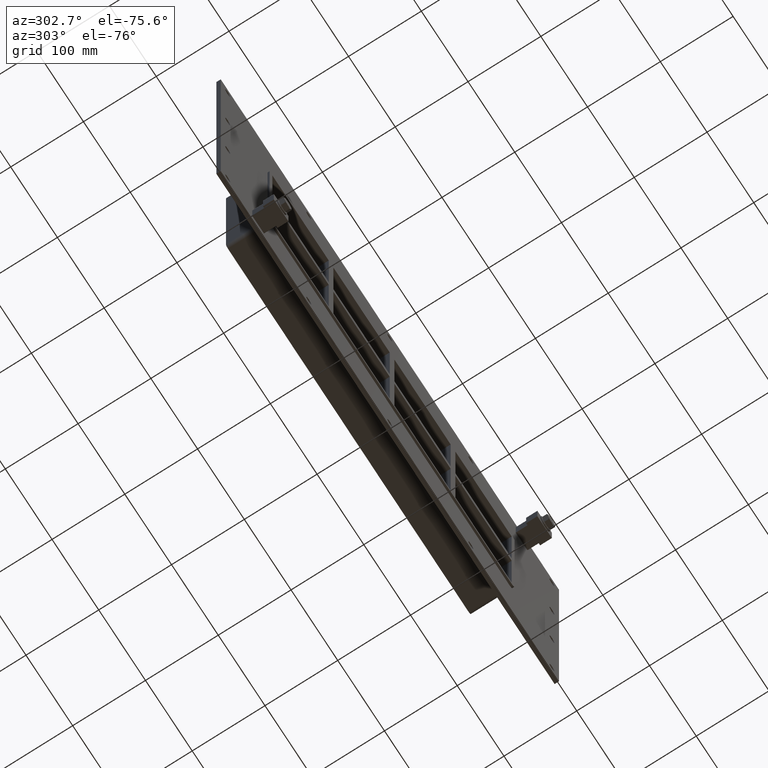
[diagram: clean part render]
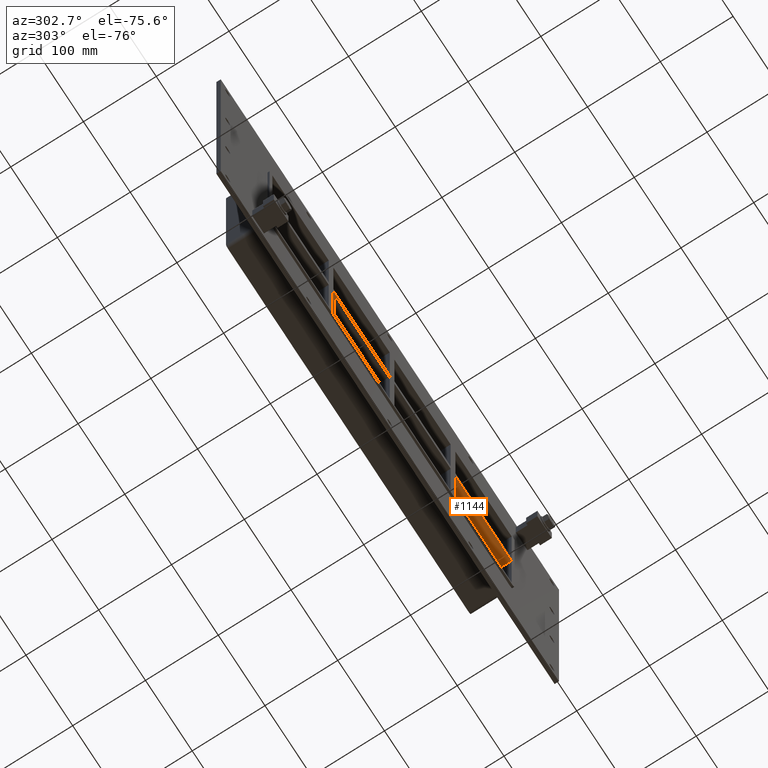
[diagram: same view with one face highlighted and labeled with its STEP entity id]
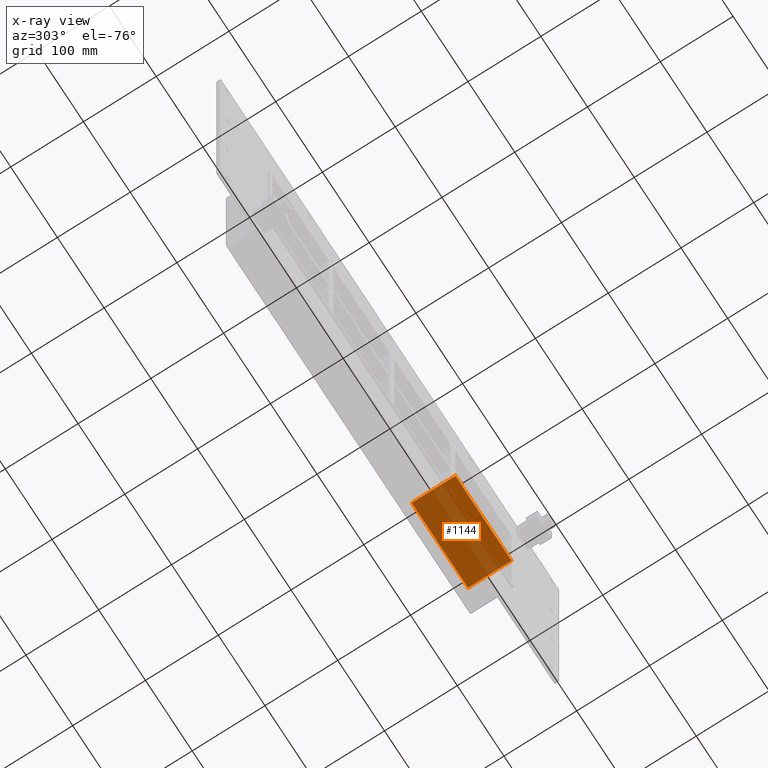
[diagram: x-ray of the same camera — body ghosted, the highlighted face saturated]
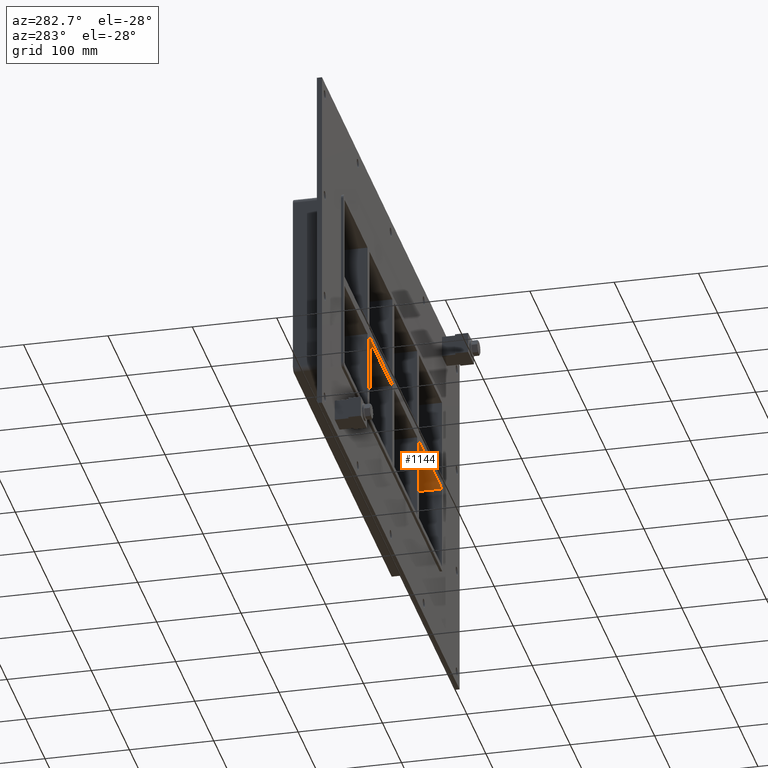
[diagram: same view with one face highlighted and labeled with its STEP entity id]
A machine part, auxiliary view. The second image highlights one B-rep face of the part: STEP entity #1144.
The next image is the same camera in x-ray: the body ghosted, the highlighted face saturated — about 77% of this face is hidden behind the body in this view.
A second angle (auxiliary view) of the same face is appended — the face is thin or edge-on in the first view.
In plain terms, the highlighted planar face has unit normal (0, 0, -1).
Its self-contained STEP definition (entity closure, byte-faithful):
#585=CARTESIAN_POINT('',(135.50000000000728,-3.0,-6.000000000010779));
#586=VERTEX_POINT('',#585);
#587=CARTESIAN_POINT('',(135.50000000000728,57.0,-6.000000000010779));
#588=VERTEX_POINT('',#587);
#589=CARTESIAN_POINT('',(135.50000000000728,-3.0,-6.000000000010788));
#590=DIRECTION('',(0.0,1.0,0.0));
#591=VECTOR('',#590,60.0);
#592=LINE('',#589,#591);
#593=EDGE_CURVE('',#586,#588,#592,.T.);
#1035=CARTESIAN_POINT('',(256.00000000000364,-3.0,-6.000000000010886));
#1036=VERTEX_POINT('',#1035);
#1037=CARTESIAN_POINT('',(256.00000000000364,-3.0,-6.000000000010886));
#1038=DIRECTION('',(-1.0,0.0,0.0));
#1039=VECTOR('',#1038,120.49999999999636);
#1040=LINE('',#1037,#1039);
#1041=EDGE_CURVE('',#1036,#586,#1040,.T.);
#1121=CARTESIAN_POINT('',(256.00000000000364,-3.0,-6.000000000010886));
#1122=DIRECTION('',(0.0,0.0,-1.0));
#1123=DIRECTION('',(-1.0,0.0,0.0));
#1124=AXIS2_PLACEMENT_3D('',#1121,#1122,#1123);
#1125=PLANE('',#1124);
#1126=ORIENTED_EDGE('',*,*,#593,.T.);
#1127=CARTESIAN_POINT('',(256.00000000000364,57.0,-6.000000000010886));
#1128=VERTEX_POINT('',#1127);
#1129=CARTESIAN_POINT('',(256.00000000000364,57.0,-6.000000000010886));
#1130=DIRECTION('',(-1.0,0.0,0.0));
#1131=VECTOR('',#1130,120.49999999999636);
#1132=LINE('',#1129,#1131);
#1133=EDGE_CURVE('',#1128,#588,#1132,.T.);
#1134=ORIENTED_EDGE('',*,*,#1133,.F.);
#1135=CARTESIAN_POINT('',(256.00000000000006,-3.0,-6.000000000010886));
#1136=DIRECTION('',(0.0,1.0,0.0));
#1137=VECTOR('',#1136,60.000000000000007);
#1138=LINE('',#1135,#1137);
#1139=EDGE_CURVE('',#1036,#1128,#1138,.T.);
#1140=ORIENTED_EDGE('',*,*,#1139,.F.);
#1141=ORIENTED_EDGE('',*,*,#1041,.T.);
#1142=EDGE_LOOP('',(#1126,#1134,#1140,#1141));
#1143=FACE_OUTER_BOUND('',#1142,.T.);
#1144=ADVANCED_FACE('',(#1143),#1125,.T.);